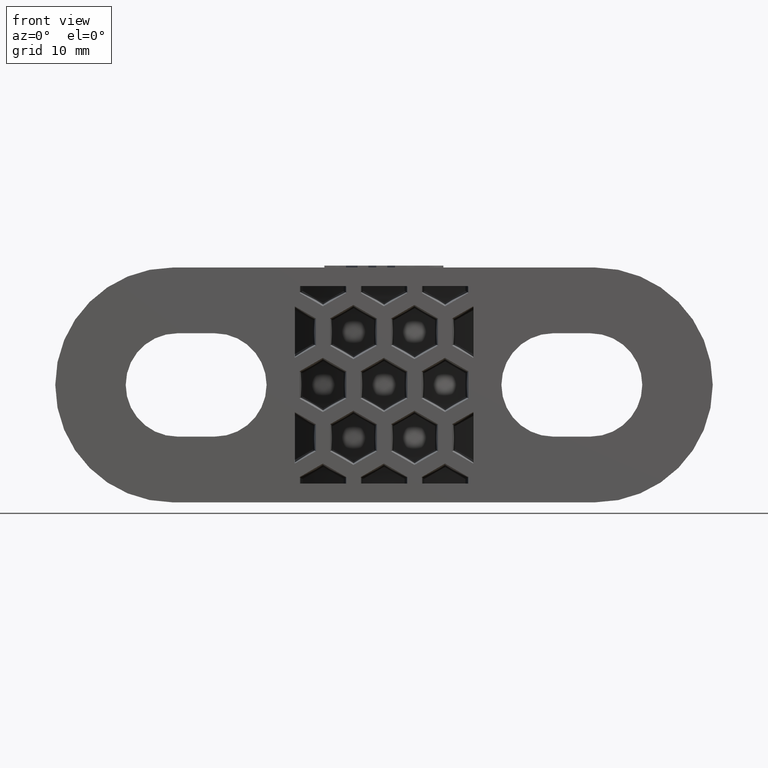
[diagram: clean part render]
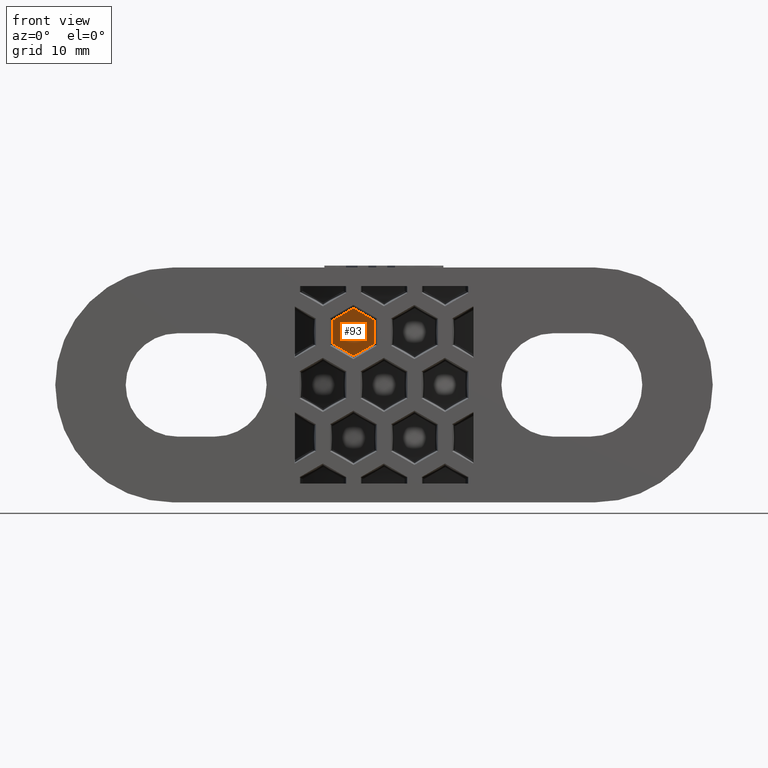
[diagram: same view with one face highlighted and labeled with its STEP entity id]
A machine part, front view. The second image highlights one B-rep face of the part: STEP entity #93.
In plain terms, the highlighted cylindrical surface (partial cylindrical patch) has radius 17.54 mm, axis along (0, 0, -1).
Its self-contained STEP definition (entity closure, byte-faithful):
#93 = ADVANCED_FACE( '', ( #322 ), #323, .T. );
#322 = FACE_OUTER_BOUND( '', #720, .T. );
#323 = CYLINDRICAL_SURFACE( '', #721, 17.5400000000000 );
#720 = EDGE_LOOP( '', ( #1321, #1322, #1323, #1324, #1325, #1326 ) );
#721 = AXIS2_PLACEMENT_3D( '', #1327, #1328, #1329 );
#1321 = ORIENTED_EDGE( '', *, *, #2720, .F. );
#1322 = ORIENTED_EDGE( '', *, *, #2721, .F. );
#1323 = ORIENTED_EDGE( '', *, *, #2722, .F. );
#1324 = ORIENTED_EDGE( '', *, *, #2723, .F. );
#1325 = ORIENTED_EDGE( '', *, *, #2724, .F. );
#1326 = ORIENTED_EDGE( '', *, *, #2725, .F. );
#1327 = CARTESIAN_POINT( '', ( -1.73472347597681E-015, 34.5400000000000, -23.0000000000000 ) );
#1328 = DIRECTION( '', ( 0.000000000000000, 0.000000000000000, -1.00000000000000 ) );
#1329 = DIRECTION( '', ( -1.00000000000000, 6.07153216591882E-017, 0.000000000000000 ) );
#2720 = EDGE_CURVE( '', #3348, #3349, #3350, .F. );
#2721 = EDGE_CURVE( '', #3351, #3348, #3352, .T. );
#2722 = EDGE_CURVE( '', #3353, #3351, #3354, .T. );
#2723 = EDGE_CURVE( '', #3355, #3353, #3356, .T. );
#2724 = EDGE_CURVE( '', #3357, #3355, #3358, .T. );
#2725 = EDGE_CURVE( '', #3349, #3357, #3359, .T. );
#3348 = VERTEX_POINT( '', #4260 );
#3349 = VERTEX_POINT( '', #4261 );
#3350 = LINE( '', #4262, #4263 );
#3351 = VERTEX_POINT( '', #4264 );
#3352 = ELLIPSE( '', #4265, 20.2565326112035, 17.5400000000000 );
#3353 = VERTEX_POINT( '', #4266 );
#3354 = ELLIPSE( '', #4267, 20.2565326112035, 17.5400000000000 );
#3355 = VERTEX_POINT( '', #4268 );
#3356 = LINE( '', #4269, #4270 );
#3357 = VERTEX_POINT( '', #4271 );
#3358 = ELLIPSE( '', #4272, 20.2565326112035, 17.5400000000000 );
#3359 = ELLIPSE( '', #4273, 20.2565326112035, 17.5400000000000 );
#4260 = CARTESIAN_POINT( '', ( -1.04728233564537, 17.0312936026260, -5.59909523893726 ) );
#4261 = CARTESIAN_POINT( '', ( -1.04728233564537, 17.0312936026260, -8.14257451186504 ) );
#4262 = CARTESIAN_POINT( '', ( -1.04728233564538, 17.0312936026260, -23.0000000000000 ) );
#4263 = VECTOR( '', #5114, 1000.00000000000 );
#4264 = CARTESIAN_POINT( '', ( -3.25000000000001, 17.3037272010449, -4.33284660323184 ) );
#4265 = AXIS2_PLACEMENT_3D( '', #5115, #5116, #5117 );
#4266 = CARTESIAN_POINT( '', ( -5.43817688782424, 17.8643341321333, -5.60749036018132 ) );
#4267 = AXIS2_PLACEMENT_3D( '', #5118, #5119, #5120 );
#4268 = CARTESIAN_POINT( '', ( -5.43817688782423, 17.8643341321333, -8.13417939062099 ) );
#4269 = CARTESIAN_POINT( '', ( -5.43817688782424, 17.8643341321333, -23.0000000000000 ) );
#4270 = VECTOR( '', #5121, 1000.00000000000 );
#4271 = CARTESIAN_POINT( '', ( -3.25000000000000, 17.3037272010449, -9.40882314757046 ) );
#4272 = AXIS2_PLACEMENT_3D( '', #5122, #5123, #5124 );
#4273 = AXIS2_PLACEMENT_3D( '', #5125, #5126, #5127 );
#5114 = DIRECTION( '', ( 0.000000000000000, 0.000000000000000, 1.00000000000000 ) );
#5115 = CARTESIAN_POINT( '', ( -1.73472347597681E-015, 34.5400000000000, -6.55663848325110 ) );
#5116 = DIRECTION( '', ( 0.499923847578196, 0.0174524064372835, 0.865893503920754 ) );
#5117 = DIRECTION( '', ( -0.865366346075250, -0.0302100515148758, 0.500228387706895 ) );
#5118 = CARTESIAN_POINT( '', ( -1.73472347597681E-015, 34.5400000000000, -2.80386173351852 ) );
#5119 = DIRECTION( '', ( -0.499923847578196, 0.0174524064372835, 0.865893503920754 ) );
#5120 = DIRECTION( '', ( 0.865366346075250, -0.0302100515148758, 0.500228387706895 ) );
#5121 = DIRECTION( '', ( 0.000000000000000, 0.000000000000000, 1.00000000000000 ) );
#5122 = CARTESIAN_POINT( '', ( -1.73472347597681E-015, 34.5400000000000, -10.9378080172838 ) );
#5123 = DIRECTION( '', ( -0.499923847578196, 0.0174524064372835, -0.865893503920754 ) );
#5124 = DIRECTION( '', ( -0.865366346075250, 0.0302100515148758, 0.500228387706894 ) );
#5125 = CARTESIAN_POINT( '', ( -1.73472347597681E-015, 34.5400000000000, -7.18503126755121 ) );
#5126 = DIRECTION( '', ( 0.499923847578195, 0.0174524064372835, -0.865893503920754 ) );
#5127 = DIRECTION( '', ( 0.865366346075250, 0.0302100515148758, 0.500228387706894 ) );